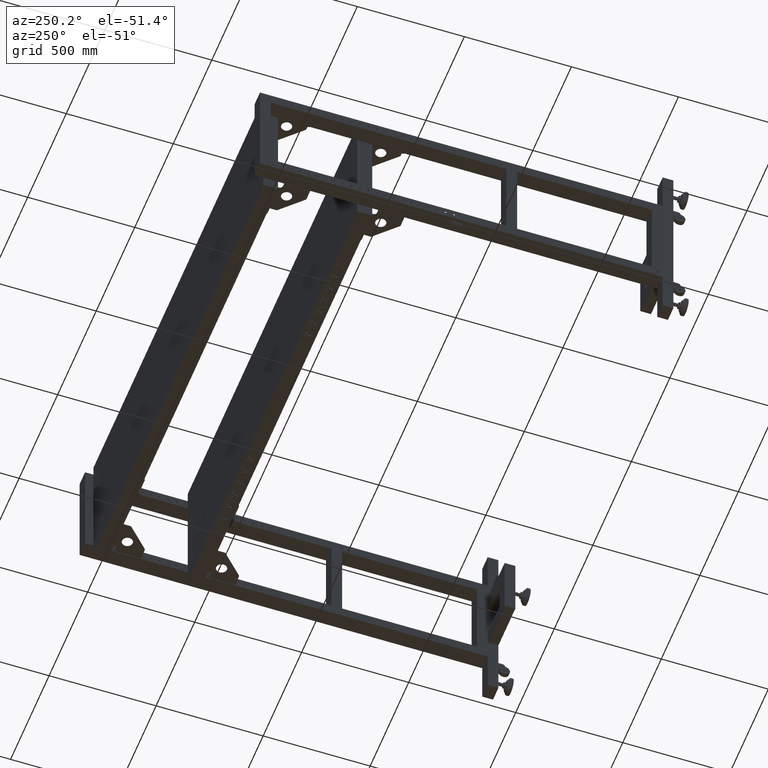
[diagram: clean part render]
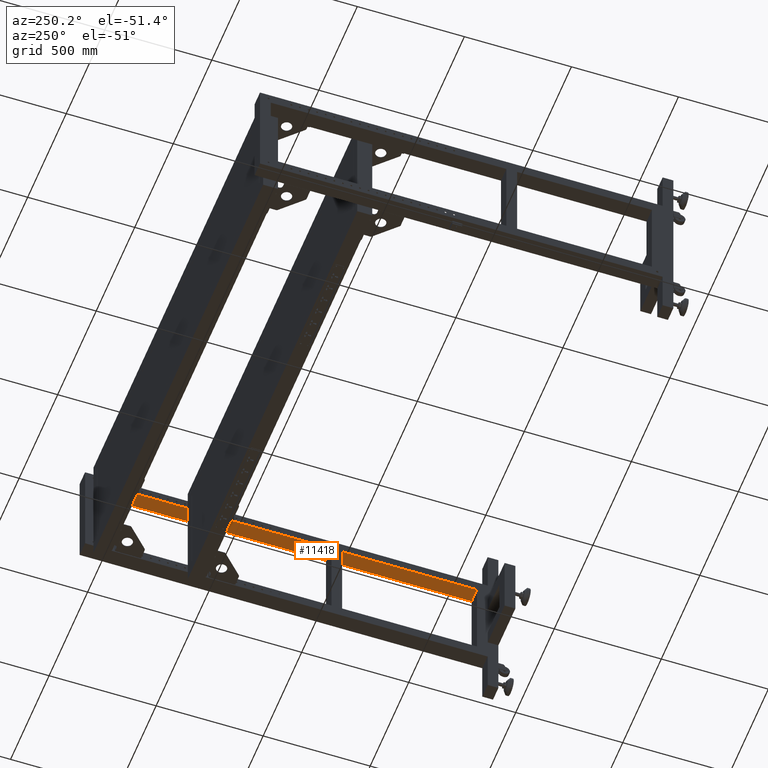
[diagram: same view with one face highlighted and labeled with its STEP entity id]
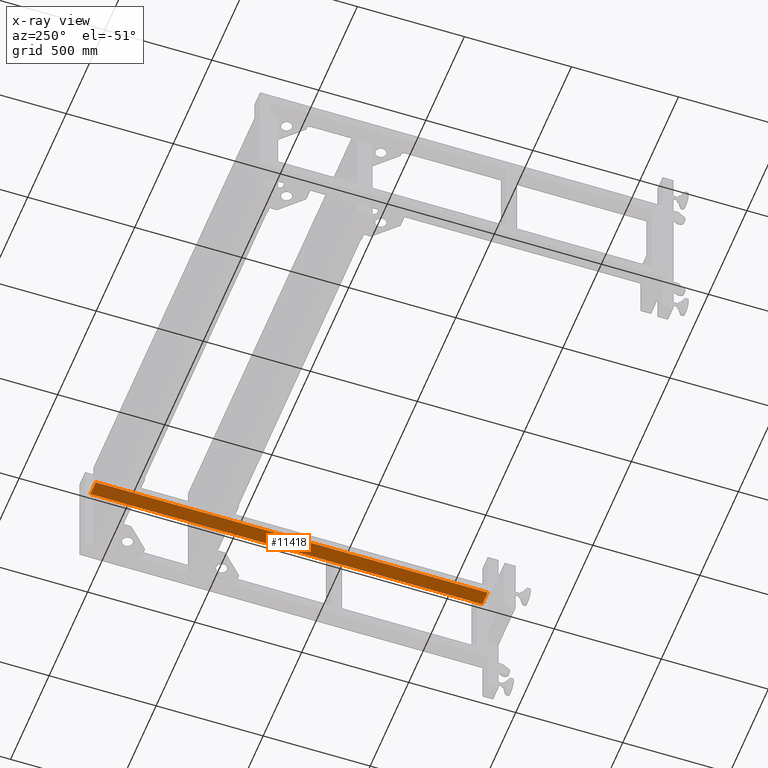
[diagram: x-ray of the same camera — body ghosted, the highlighted face saturated]
A machine part, auxiliary view. The second image highlights one B-rep face of the part: STEP entity #11418.
The next image is the same camera in x-ray: the body ghosted, the highlighted face saturated — about 15% of this face is hidden behind the body in this view.
In plain terms, the highlighted planar face has unit normal (0, 0, 1).
Its self-contained STEP definition (entity closure, byte-faithful):
#892 = EDGE_CURVE ( 'NONE', #28614, #73196, #35723, .T. ) ;
#2579 = CARTESIAN_POINT ( 'NONE',  ( 931.8275125628155138, -844.5589195979886199, 199.9999999999999716 ) ) ;
#2814 = DIRECTION ( 'NONE',  ( -1.000000000000000000, -7.102496594662483458E-16, 0.000000000000000000 ) ) ;
#2914 = ORIENTED_EDGE ( 'NONE', *, *, #30889, .F. ) ;
#2985 = LINE ( 'NONE', #9906, #50732 ) ;
#3285 = LINE ( 'NONE', #66325, #54169 ) ;
#4112 = DIRECTION ( 'NONE',  ( 1.265361171778826222E-15, -1.000000000000000000, -0.000000000000000000 ) ) ;
#5131 = VERTEX_POINT ( 'NONE', #5345 ) ;
#5345 = CARTESIAN_POINT ( 'NONE',  ( 931.8114695119237467, 926.9410804020114938, 199.9999999999999716 ) ) ;
#6150 = LINE ( 'NONE', #23769, #17855 ) ;
#6361 = VERTEX_POINT ( 'NONE', #36466 ) ;
#6426 = EDGE_CURVE ( 'NONE', #28614, #47352, #6150, .T. ) ;
#6650 = CARTESIAN_POINT ( 'NONE',  ( 1001.827512562815286, -844.5589195979886199, 199.9999999999999716 ) ) ;
#7075 = DIRECTION ( 'NONE',  ( 1.265361171778826222E-15, -1.000000000000000000, -0.000000000000000000 ) ) ;
#7784 = ORIENTED_EDGE ( 'NONE', *, *, #892, .F. ) ;
#9698 = LINE ( 'NONE', #66625, #56151 ) ;
#9906 = CARTESIAN_POINT ( 'NONE',  ( 931.8275125628155138, -844.5589195979886199, 199.9999999999999716 ) ) ;
#11418 = ADVANCED_FACE ( 'NONE', ( #80950 ), #13416, .F. ) ;
#13416 = PLANE ( 'NONE',  #42085 ) ;
#13627 = CARTESIAN_POINT ( 'NONE',  ( 1001.827512562814832, 986.4410804020139949, 199.9999999999999716 ) ) ;
#15603 = ORIENTED_EDGE ( 'NONE', *, *, #28839, .T. ) ;
#16200 = ORIENTED_EDGE ( 'NONE', *, *, #41952, .F. ) ;
#17527 = VERTEX_POINT ( 'NONE', #2579 ) ;
#17855 = VECTOR ( 'NONE', #68391, 1000.000000000000000 ) ;
#19192 = VECTOR ( 'NONE', #29978, 1000.000000000000000 ) ;
#21462 = CARTESIAN_POINT ( 'NONE',  ( 931.8275125628159685, 986.4410804020138812, 199.9999999999999716 ) ) ;
#22241 = ORIENTED_EDGE ( 'NONE', *, *, #55043, .T. ) ;
#23435 = EDGE_CURVE ( 'NONE', #29834, #6361, #9698, .T. ) ;
#23769 = CARTESIAN_POINT ( 'NONE',  ( 1001.827512562815741, 986.4410804020112664, 199.9999999999999716 ) ) ;
#25578 = VECTOR ( 'NONE', #69692, 1000.000000000000000 ) ;
#27762 = LINE ( 'NONE', #34311, #42480 ) ;
#28614 = VERTEX_POINT ( 'NONE', #21462 ) ;
#28720 = ORIENTED_EDGE ( 'NONE', *, *, #73745, .T. ) ;
#28839 = EDGE_CURVE ( 'NONE', #47352, #62747, #32023, .T. ) ;
#29326 = DIRECTION ( 'NONE',  ( 1.000000000000000000, 1.851030650155647686E-15, 0.000000000000000000 ) ) ;
#29834 = VERTEX_POINT ( 'NONE', #33353 ) ;
#29978 = DIRECTION ( 'NONE',  ( 1.265361171778826419E-15, -1.000000000000000000, 0.000000000000000000 ) ) ;
#30889 = EDGE_CURVE ( 'NONE', #5131, #29834, #3285, .T. ) ;
#32023 = LINE ( 'NONE', #13627, #76634 ) ;
#32866 = CARTESIAN_POINT ( 'NONE',  ( 1001.827512562815741, 986.4410804020112664, 199.9999999999999716 ) ) ;
#32913 = EDGE_LOOP ( 'NONE', ( #44860, #15603, #22241, #28720, #75404, #2914, #16200, #7784 ) ) ;
#33353 = CARTESIAN_POINT ( 'NONE',  ( 931.8114695119237467, 919.4410804020138812, 199.9999999999999716 ) ) ;
#34311 = CARTESIAN_POINT ( 'NONE',  ( 931.8275125628159685, 926.9410804020114938, 199.9999999999999716 ) ) ;
#34876 = DIRECTION ( 'NONE',  ( -2.653611717788262918E-16, 1.000000000000000000, 0.000000000000000000 ) ) ;
#35723 = LINE ( 'NONE', #73761, #19192 ) ;
#36466 = CARTESIAN_POINT ( 'NONE',  ( 931.8275125628150590, 919.4410804020138812, 199.9999999999999716 ) ) ;
#41952 = EDGE_CURVE ( 'NONE', #73196, #5131, #27762, .T. ) ;
#42085 = AXIS2_PLACEMENT_3D ( 'NONE', #50671, #62555, #75625 ) ;
#42480 = VECTOR ( 'NONE', #2814, 1000.000000000000000 ) ;
#44860 = ORIENTED_EDGE ( 'NONE', *, *, #6426, .T. ) ;
#47352 = VERTEX_POINT ( 'NONE', #32866 ) ;
#50671 = CARTESIAN_POINT ( 'NONE',  ( 1001.827512562814832, 986.4410804020139949, 199.9999999999999716 ) ) ;
#50732 = VECTOR ( 'NONE', #34876, 1000.000000000000000 ) ;
#50906 = CARTESIAN_POINT ( 'NONE',  ( 931.8275125628159685, 926.9410804020114938, 199.9999999999999716 ) ) ;
#54169 = VECTOR ( 'NONE', #4112, 1000.000000000000000 ) ;
#55043 = EDGE_CURVE ( 'NONE', #62747, #17527, #62741, .T. ) ;
#56151 = VECTOR ( 'NONE', #29326, 1000.000000000000000 ) ;
#56475 = CARTESIAN_POINT ( 'NONE',  ( 1001.827512562815286, -844.5589195979886199, 199.9999999999999716 ) ) ;
#62555 = DIRECTION ( 'NONE',  ( 0.000000000000000000, 0.000000000000000000, 1.000000000000000000 ) ) ;
#62741 = LINE ( 'NONE', #6650, #25578 ) ;
#62747 = VERTEX_POINT ( 'NONE', #56475 ) ;
#66325 = CARTESIAN_POINT ( 'NONE',  ( 931.8114695119237467, 986.4410804020139949, 199.9999999999999716 ) ) ;
#66625 = CARTESIAN_POINT ( 'NONE',  ( 1001.827512562814832, 919.4410804020139949, 199.9999999999999716 ) ) ;
#68391 = DIRECTION ( 'NONE',  ( 1.000000000000000000, 2.653611717788262918E-16, 0.000000000000000000 ) ) ;
#69692 = DIRECTION ( 'NONE',  ( -1.000000000000000000, -2.653611717788262918E-16, 0.000000000000000000 ) ) ;
#73196 = VERTEX_POINT ( 'NONE', #50906 ) ;
#73745 = EDGE_CURVE ( 'NONE', #17527, #6361, #2985, .T. ) ;
#73761 = CARTESIAN_POINT ( 'NONE',  ( 931.8275125628159685, 996.9410804020112664, 199.9999999999999716 ) ) ;
#75404 = ORIENTED_EDGE ( 'NONE', *, *, #23435, .F. ) ;
#75625 = DIRECTION ( 'NONE',  ( -1.000000000000000000, -2.653611717788262918E-16, 0.000000000000000000 ) ) ;
#76634 = VECTOR ( 'NONE', #7075, 1000.000000000000000 ) ;
#80950 = FACE_OUTER_BOUND ( 'NONE', #32913, .T. ) ;